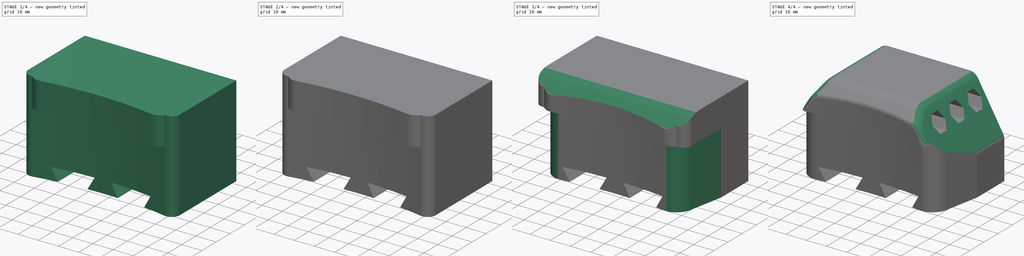
[diagram: build sequence overview — one tinted view per stage of 4, left to right]
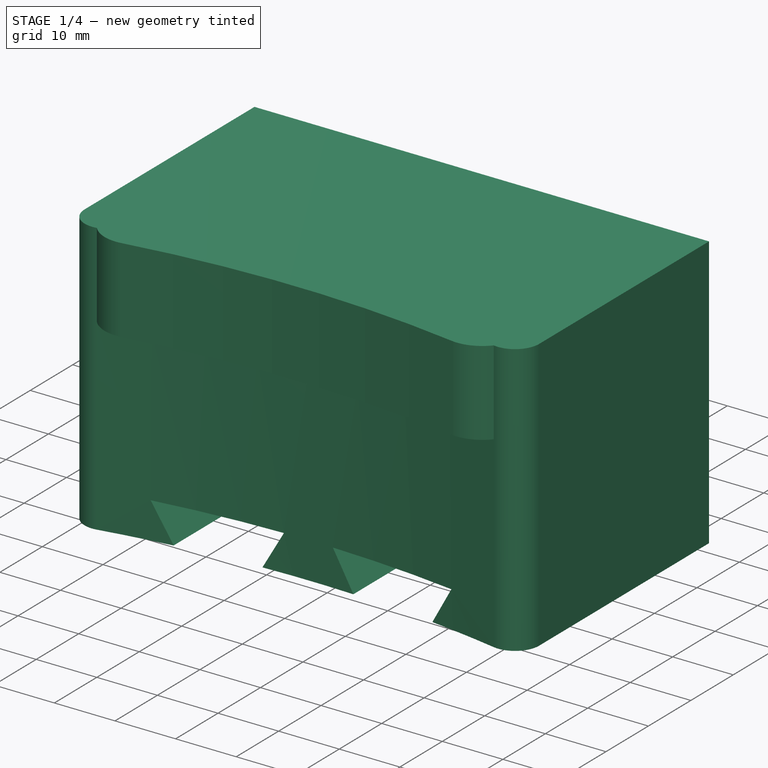
[diagram: stage 1 of 4 — iso view after this stage's code; geometry added in this stage tinted green]
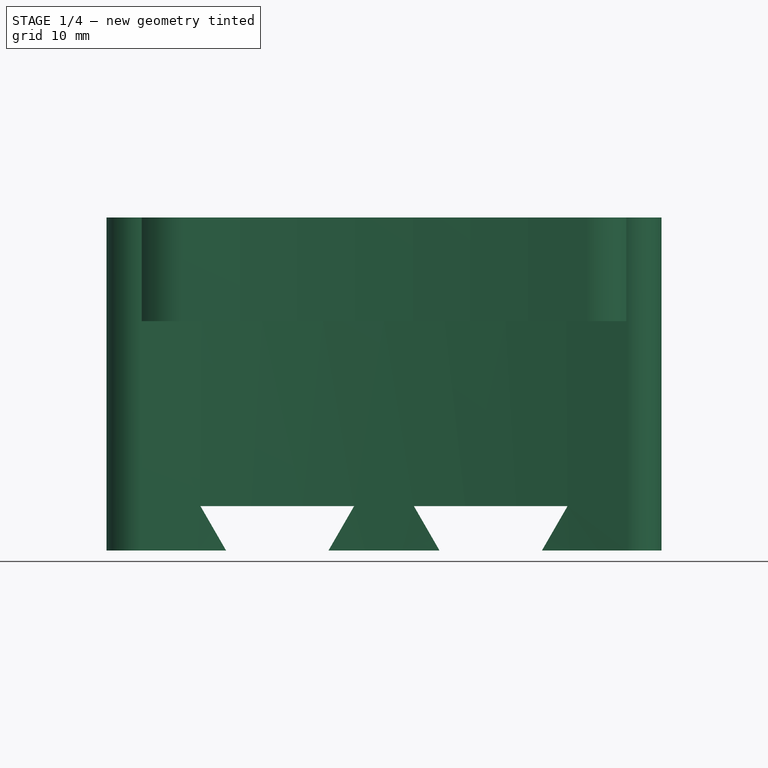
[diagram: stage 1 of 4 — front view after this stage's code; geometry added in this stage tinted green]
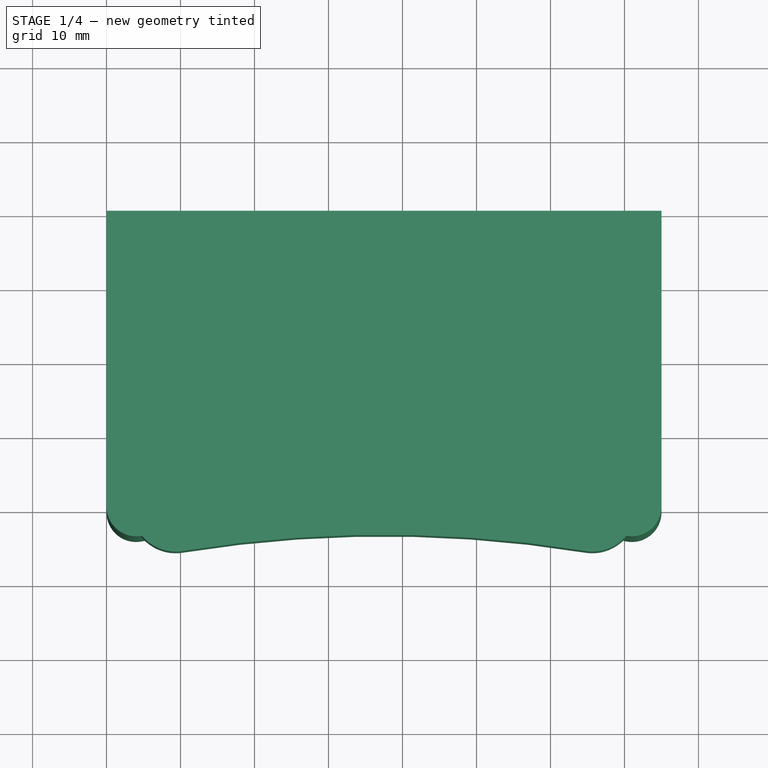
[diagram: stage 1 of 4 — top view after this stage's code; geometry added in this stage tinted green]
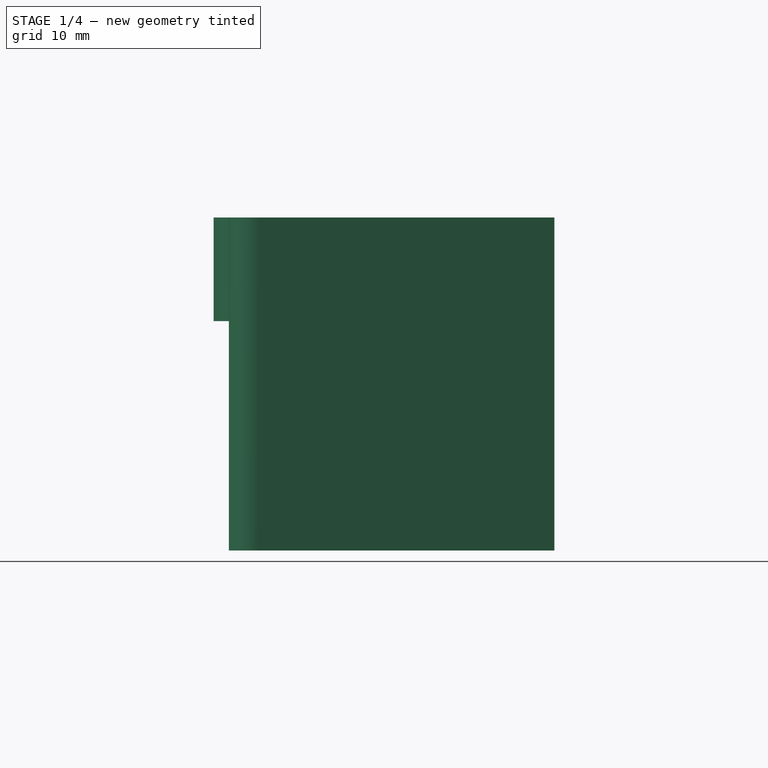
[diagram: stage 1 of 4 — right view after this stage's code; geometry added in this stage tinted green]
FCSTD DOCUMENT  (FreeCAD 0.19R14555 (Git shallow))
Label: toe_clip
License: All rights reserved
LicenseURL: http://en.wikipedia.org/wiki/All_rights_reserved
objects: Sketcher::SketchObject×10, PartDesign::Pocket×6, PartDesign::Fillet×4, PartDesign::Pad×3, PartDesign::Hole×1, PartDesign::Body×1
note: 39 computed .brp shape members not serialized (recipe doc carries the construction recipe); baked Part::Feature solids carry a one-line shape summary decoded from their .brp

FEATURE [Sketcher::SketchObject] Sketch
  FullyConstrained = true
  MapMode = 5
  Support = -> [XY_Plane]
  sketch-geometry (6):
    g0: LineSegment StartX=0 StartY=0 StartZ=0 EndX=75 EndY=0 EndZ=0
    g1: LineSegment StartX=75 StartY=0 StartZ=0 EndX=75 EndY=-40 EndZ=0
    g2: LineSegment StartX=0 StartY=-40 StartZ=0 EndX=0 EndY=0 EndZ=0
    g3: ArcOfCircle CenterX=37.5 CenterY=-213.781 CenterZ=0 NormalX=0 NormalY=0 NormalZ=1 AngleXU=0 Radius=172.981 StartAngle=1.38036 EndAngle=1.76123
    g4: ArcOfCircle CenterX=4 CenterY=-40 CenterZ=0 NormalX=0 NormalY=0 NormalZ=1 AngleXU=0 Radius=4 StartAngle=3.14159 EndAngle=4.90282
    g5: ArcOfCircle CenterX=71 CenterY=-40 CenterZ=0 NormalX=0 NormalY=0 NormalZ=1 AngleXU=0 Radius=4 StartAngle=4.52195 EndAngle=6.28319
  constraints (16):
    c: Coincident(g0,g1)
    c: Coincident(g2,g0)
    c: Horizontal(g0)
    c: Vertical(g1)
    c: Vertical(g2)
    c: Coincident(g0,g-1)
    c: DistanceX(g0,g0) = 75
    c: Radius(g4) = 4
    c: Equal(g4,g5)
    c: Tangent(g4,g2) = 1.5708
    c: Tangent(g4,g3) = 1.5708
    c: Tangent(g5,g3) = 1.5708
    c: Tangent(g5,g1) = 1.5708
    c: DistanceX(g3) = 37.5
    c: DistanceY(g3) = -213.781
    c: DistanceY(g1,g1) = 40
FEATURE [PartDesign::Pad] Pad
  Direction = (1,1,1)
  Length = 45
  Length2 = 100
  Profile = -> Sketch
  Type = 0
FEATURE [Sketcher::SketchObject] Sketch001
  ExternalGeometry = -> [Pad]
  FullyConstrained = true
  MapMode = 5
  Placement = pos=(0,0,0) rot=(0,0.707107,0.707107;3.14159rad)
  Support = -> [Pad]
  sketch-geometry (24):
    g0: LineSegment StartX=-75 StartY=0 StartZ=0 EndX=-57.6906 EndY=0 EndZ=0
    g1: LineSegment StartX=-57.6906 StartY=0 StartZ=0 EndX=-60.5774 EndY=5 EndZ=0
    g2: LineSegment StartX=-60.5774 StartY=5 StartZ=0 EndX=-43.2679 EndY=5 EndZ=0
    g3: LineSegment StartX=-43.2679 StartY=5 StartZ=0 EndX=-46.1547 EndY=0 EndZ=0
    g4: LineSegment StartX=-46.1547 StartY=0 StartZ=0 EndX=-28.8453 EndY=0 EndZ=0
    g5: LineSegment StartX=-28.8453 StartY=0 StartZ=0 EndX=-31.7321 EndY=5 EndZ=0
    g6: LineSegment StartX=-31.7321 StartY=5 StartZ=0 EndX=-14.4226 EndY=5 EndZ=0
    g7: LineSegment StartX=-14.4226 StartY=5 StartZ=0 EndX=-17.3094 EndY=0 EndZ=0
    g8: LineSegment StartX=-17.3094 StartY=0 StartZ=0 EndX=0 EndY=0 EndZ=0
    g9: LineSegment StartX=-28.8453 StartY=5 StartZ=0 EndX=-28.8453 EndY=0 EndZ=0
    g10: LineSegment StartX=-75 StartY=0 StartZ=0 EndX=-58.8453 EndY=0 EndZ=0
    g11: LineSegment StartX=-58.8453 StartY=0 StartZ=0 EndX=-62.3094 EndY=6 EndZ=0
    g12: LineSegment StartX=-62.3094 StartY=6 StartZ=0 EndX=-41.5359 EndY=6 EndZ=0
    g13: LineSegment StartX=-41.5359 StartY=6 StartZ=0 EndX=-45 EndY=0 EndZ=0
    g14: LineSegment StartX=-45 StartY=0 StartZ=0 EndX=-30 EndY=0 EndZ=0
    g15: LineSegment StartX=-30 StartY=0 StartZ=0 EndX=-33.4641 EndY=6 EndZ=0
    g16: LineSegment StartX=-33.4641 StartY=6 StartZ=0 EndX=-12.6906 EndY=6 EndZ=0
    g17: LineSegment StartX=-12.6906 StartY=6 StartZ=0 EndX=-16.1547 EndY=0 EndZ=0
    g18: LineSegment StartX=-16.1547 StartY=0 StartZ=0 EndX=0 EndY=0 EndZ=0
    g19: LineSegment StartX=-60.5774 StartY=5 StartZ=0 EndX=-60.5774 EndY=6 EndZ=0
    g20: LineSegment StartX=-60.5774 StartY=5 StartZ=0 EndX=-61.4434 EndY=4.5 EndZ=0
    g21: LineSegment StartX=-43.2679 StartY=5 StartZ=0 EndX=-42.4019 EndY=4.5 EndZ=0
    g22: LineSegment StartX=-30 StartY=0 StartZ=0 EndX=-16.1547 EndY=0 EndZ=0
    g23: LineSegment StartX=-58.8453 StartY=0 StartZ=0 EndX=-45 EndY=0 EndZ=0
  constraints (68):
    c: Coincident(g0,g-3)
    c: PointOnObject(g0,g-1)
    c: Coincident(g0,g1)
    c: Coincident(g1,g2)
    c: Horizontal(g2)
    c: Coincident(g2,g3)
    c: Coincident(g3,g4)
    c: PointOnObject(g4,g-1)
    c: Horizontal(g4)
    c: Coincident(g4,g5)
    c: Coincident(g5,g6)
    c: Horizontal(g6)
    c: Coincident(g6,g7)
    c: Coincident(g7,g8)
    c: Coincident(g8,g-1)
    c: Horizontal(g8)
    c: Equal(g0,g2)
    c: Equal(g2,g4)
    c: Equal(g4,g6)
    c: Equal(g6,g8)
    c: Parallel(g1,g5)
    c: Angle(g1) = 2.0944
    c: Equal(g1,g3)
    c: Equal(g3,g5)
    c: Equal(g5,g7)
    c: PointOnObject(g9,g6)
    c: Coincident(g9,g4)
    c: Vertical(g9)
    c: DistanceY(g9,g9) = 5
    c: Coincident(g0,g10)
    c: Coincident(g10,g11)
    c: Coincident(g11,g12)
    c: Horizontal(g12)
    c: Coincident(g12,g13)
    c: Coincident(g13,g14)
    c: Horizontal(g14)
    c: Coincident(g14,g15)
    c: Coincident(g15,g16)
    c: Horizontal(g16)
    c: Coincident(g16,g17)
    c: Coincident(g17,g18)
    c: Coincident(g18,g-1)
    c: Horizontal(g18)
    c: Horizontal(g10)
    c: Equal(g12,g16)
    c: Equal(g10,g18)
    c: Equal(g11,g13)
    c: Equal(g13,g15)
    c: Equal(g15,g17)
    c: PointOnObject(g13,g4)
    c: Parallel(g11,g1)
    c: Parallel(g1,g15)
    c: Coincident(g19,g1)
    c: PointOnObject(g19,g12)
    c: Vertical(g19)
    c: DistanceY(g19,g19) = 1
    c: PointOnObject(g20,g11)
    c: Perpendicular(g1,g20)
    c: Distance(g20) = 1
    c: Coincident(g21,g2)
    c: PointOnObject(g21,g13)
    c: Perpendicular(g13,g21)
    c: Distance(g21) = 1
    c: Coincident(g20,g1)
    c: Coincident(g22,g15)
    c: Coincident(g22,g17)
    c: Coincident(g23,g11)
    c: Coincident(g23,g13)
FEATURE [PartDesign::Pocket] Pocket
  BaseFeature = -> Pad
  Length = 5
  Length2 = 100
  Profile = -> Sketch001
  Type = 1
FEATURE [Sketcher::SketchObject] Sketch002
  ExternalGeometry = -> [Pocket]
  FullyConstrained = true
  MapMode = 5
  Placement = pos=(0,0,0) rot=(0,0.707107,0.707107;3.14159rad)
  Support = -> [Pocket]
  sketch-geometry (24):
    g0: LineSegment StartX=-57.6906 StartY=0 StartZ=0 EndX=-60.5774 EndY=5 EndZ=0
    g1: LineSegment StartX=-60.5774 StartY=5 StartZ=0 EndX=-43.2679 EndY=5 EndZ=0
    g2: LineSegment StartX=-43.2679 StartY=5 StartZ=0 EndX=-46.1547 EndY=4.7278e-12 EndZ=0
    g3: LineSegment StartX=-28.8453 StartY=-1.3e-15 StartZ=0 EndX=-31.7321 EndY=5 EndZ=0
    g4: LineSegment StartX=-31.7321 StartY=5 StartZ=0 EndX=-14.4226 EndY=5 EndZ=0
    g5: LineSegment StartX=-14.4226 StartY=5 StartZ=0 EndX=-17.3094 EndY=4.726e-12 EndZ=0
    g6: LineSegment StartX=-60.5774 StartY=5 StartZ=0 EndX=-60.5774 EndY=6 EndZ=0
    g7: LineSegment StartX=-60.5774 StartY=5 StartZ=0 EndX=-61.4434 EndY=4.5 EndZ=0
    g8: LineSegment StartX=-43.2679 StartY=5 StartZ=0 EndX=-42.4019 EndY=4.5 EndZ=0
    g9: LineSegment StartX=-31.7321 StartY=5 StartZ=0 EndX=-31.7321 EndY=6 EndZ=0
    g10: LineSegment StartX=-31.7321 StartY=5 StartZ=0 EndX=-32.5981 EndY=4.5 EndZ=0
    g11: LineSegment StartX=-14.4226 StartY=5 StartZ=0 EndX=-13.5566 EndY=4.5 EndZ=0
    g12: LineSegment StartX=-60.5774 StartY=5 StartZ=0 EndX=-43.2679 EndY=5 EndZ=0
    g13: LineSegment StartX=-43.2679 StartY=5 StartZ=0 EndX=-51.9226 EndY=19.9904 EndZ=0
    g14: LineSegment StartX=-51.9226 StartY=19.9904 StartZ=0 EndX=-60.5774 EndY=5 EndZ=0
    g15: Circle CenterX=-51.9226 CenterY=9.99679 CenterZ=0 NormalX=0 NormalY=0 NormalZ=1 AngleXU=0 Radius=9.99359
    g16: LineSegment StartX=-31.7321 StartY=5 StartZ=0 EndX=-14.4226 EndY=5 EndZ=0
    g17: LineSegment StartX=-14.4226 StartY=5 StartZ=0 EndX=-23.0774 EndY=19.9904 EndZ=0
    g18: LineSegment StartX=-23.0774 StartY=19.9904 StartZ=0 EndX=-31.7321 EndY=5 EndZ=0
    g19: Circle CenterX=-23.0774 CenterY=9.99679 CenterZ=0 NormalX=0 NormalY=0 NormalZ=1 AngleXU=0 Radius=9.99359
    g20: Circle CenterX=-51.9226 CenterY=19.9904 CenterZ=0 NormalX=0 NormalY=0 NormalZ=1 AngleXU=0 Radius=6.75
    g21: Circle CenterX=-51.9226 CenterY=19.9904 CenterZ=0 NormalX=0 NormalY=0 NormalZ=1 AngleXU=0 Radius=3
    g22: Circle CenterX=-23.0774 CenterY=19.9904 CenterZ=0 NormalX=0 NormalY=0 NormalZ=1 AngleXU=0 Radius=6.75
    g23: Circle CenterX=-23.0774 CenterY=19.9904 CenterZ=0 NormalX=0 NormalY=0 NormalZ=1 AngleXU=0 Radius=3
  constraints (66):
    c: Coincident(g0,g1)
    c: Horizontal(g1)
    c: Coincident(g1,g2)
    c: Coincident(g3,g4)
    c: Horizontal(g4)
    c: Coincident(g4,g5)
    c: Parallel(g-3,g0)
    c: Parallel(g0,g3)
    c: Parallel(g2,g-5)
    c: Parallel(g-5,g5)
    c: Coincident(g6,g0)
    c: PointOnObject(g6,g-4)
    c: Vertical(g6)
    c: Coincident(g7,g0)
    c: PointOnObject(g7,g-3)
    c: Coincident(g8,g1)
    c: PointOnObject(g8,g-5)
    c: Coincident(g9,g3)
    c: PointOnObject(g9,g-7)
    c: Coincident(g10,g3)
    c: PointOnObject(g10,g-6)
    c: Coincident(g11,g4)
    c: PointOnObject(g11,g-8)
    c: Equal(g7,g6)
    c: Equal(g6,g8)
    c: Equal(g8,g10)
    c: Equal(g10,g9)
    c: Equal(g9,g11)
    c: Perpendicular(g-3,g7)
    c: Perpendicular(g-5,g8)
    c: Perpendicular(g-6,g10)
    c: Perpendicular(g5,g11)
    c: Distance(g7) = 1
    c: PointOnObject(g0,g-1)
    c: Equal(g0,g2)
    c: Equal(g2,g3)
    c: Equal(g3,g5)
    c: Vertical(g9)
    c: Coincident(g12,g13)
    c: Coincident(g13,g14)
    c: Coincident(g14,g12)
    c: Equal(g12,g13)
    c: Equal(g12,g14)
    c: PointOnObject(g12,g15)
    c: PointOnObject(g13,g15)
    c: PointOnObject(g14,g15)
    c: Coincident(g14,g0)
    c: Coincident(g12,g1)
    c: Coincident(g16,g17)
    c: Coincident(g17,g18)
    c: Coincident(g18,g16)
    c: Equal(g16,g17)
    c: Equal(g16,g18)
    c: PointOnObject(g16,g19)
    c: PointOnObject(g17,g19)
    c: PointOnObject(g18,g19)
    c: Coincident(g18,g3)
    c: Coincident(g16,g4)
    c: Coincident(g20,g13)
    c: Coincident(g21,g20)
    c: Coincident(g22,g17)
    c: Coincident(g23,g22)
    c: Diameter(g20) = 13.5
    c: Equal(g20,g22)
    c: Diameter(g21) = 6
    c: Equal(g21,g23)
FEATURE [PartDesign::Pocket] Pocket001
  BaseFeature = -> Pocket
  Length = 10
  Length2 = 100
  Profile = -> Sketch002
  Type = 0
FEATURE [Sketcher::SketchObject] Sketch003
  ExternalGeometry = -> [Pocket001]
  FullyConstrained = true
  MapMode = 5
  Placement = pos=(0,0,45) rot=(0,0,1;0rad)
  Support = -> [Pocket001]
  sketch-geometry (5):
    g0: ArcOfCircle CenterX=37.5 CenterY=-213.781 CenterZ=0 NormalX=0 NormalY=0 NormalZ=1 AngleXU=0 Radius=172.981 StartAngle=1.38036 EndAngle=1.76123
    g1: ArcOfCircle CenterX=37.5 CenterY=-213.781 CenterZ=0 NormalX=0 NormalY=0 NormalZ=1 AngleXU=0 Radius=169.981 StartAngle=1.41014 EndAngle=1.73145
    g2: LineSegment StartX=37.5 StartY=-43.8005 StartZ=0 EndX=37.5 EndY=-40.8005 EndZ=0
    g3: ArcOfCircle CenterX=9.34976 CenterY=-40.0666 CenterZ=0 NormalX=0 NormalY=0 NormalZ=1 AngleXU=0 Radius=6 StartAngle=3.84067 EndAngle=4.87304
    g4: ArcOfCircle CenterX=65.6502 CenterY=-40.0666 CenterZ=0 NormalX=0 NormalY=0 NormalZ=1 AngleXU=0 Radius=6 StartAngle=4.55174 EndAngle=5.58411
  constraints (16):
    c: PointOnObject(g-3,g0)
    c: Coincident(g0,g-3)
    c: Coincident(g1,g0)
    c: PointOnObject(g2,g1)
    c: PointOnObject(g2,g0)
    c: Perpendicular(g1,g2)
    c: Distance(g2) = 3
    c: Vertical(g2)
    c: PointOnObject(g-3,g3)
    c: Diameter(g3) = 12
    c: PointOnObject(g-3,g4)
    c: Equal(g3,g4)
    c: Coincident(g0,g3)
    c: Tangent(g1,g3) = 1.5708
    c: Coincident(g4,g0)
    c: Tangent(g4,g1) = 1.5708
FEATURE [PartDesign::Pad] Pad001
  BaseFeature = -> Pocket001
  Direction = (1,1,1)
  Length = 10
  Length2 = 100
  Offset = -31
  Profile = -> Sketch003
  Reversed = true
  Type = 3
  UpToFace = -> Pocket001 [Face6]
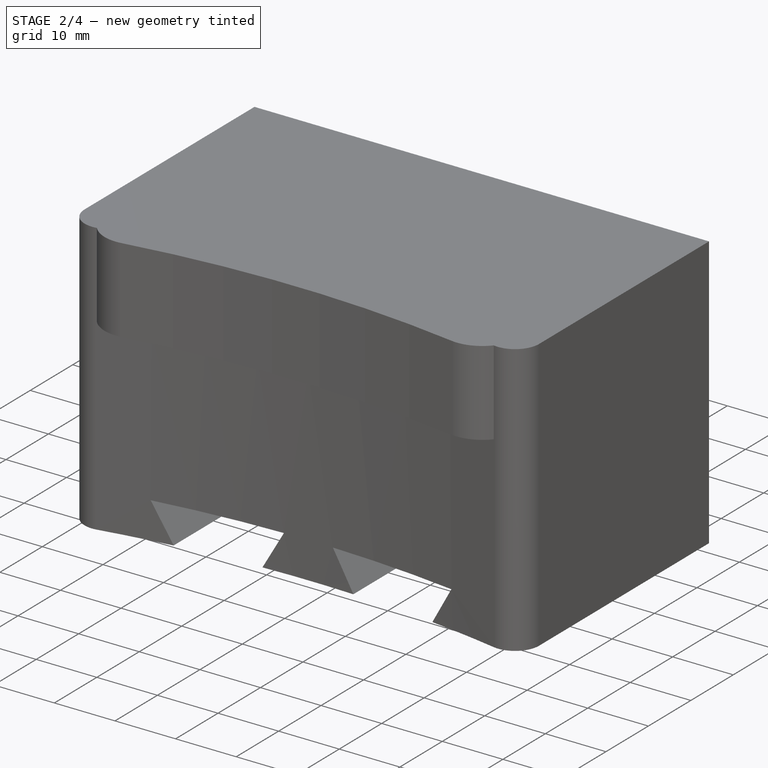
[diagram: stage 2 of 4 — iso view after this stage's code; geometry added in this stage tinted green]
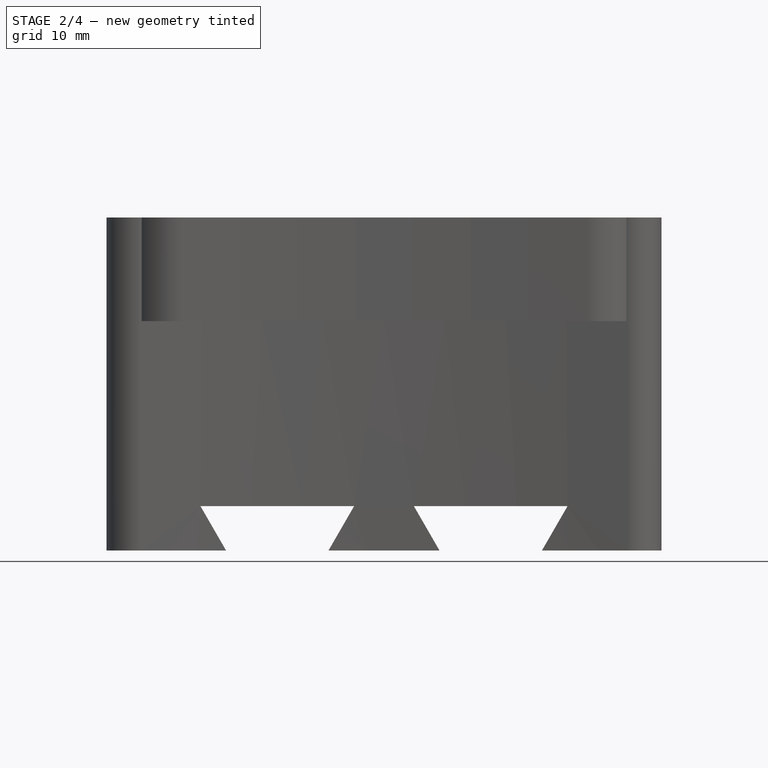
[diagram: stage 2 of 4 — front view after this stage's code; geometry added in this stage tinted green]
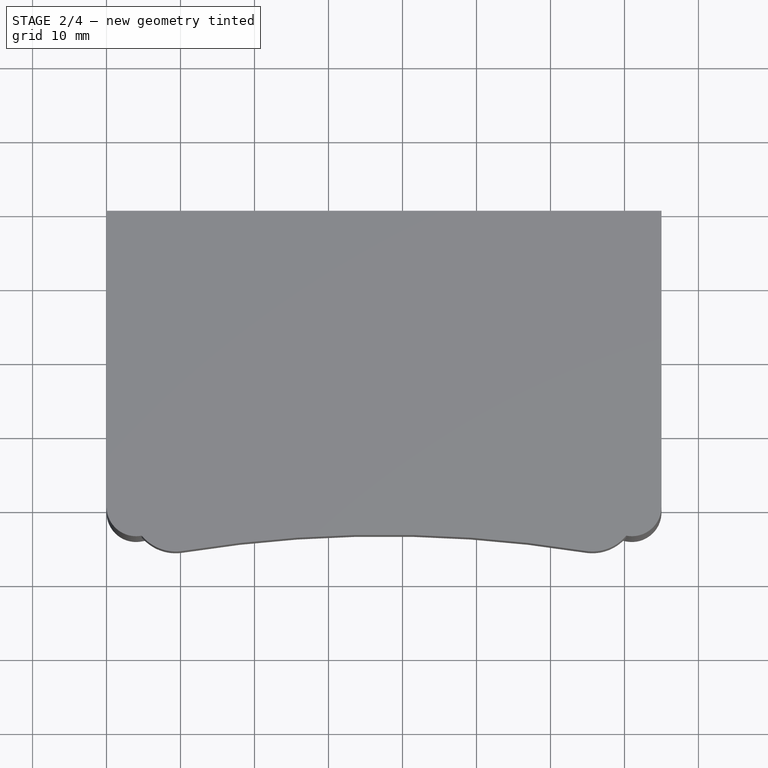
[diagram: stage 2 of 4 — top view after this stage's code; geometry added in this stage tinted green]
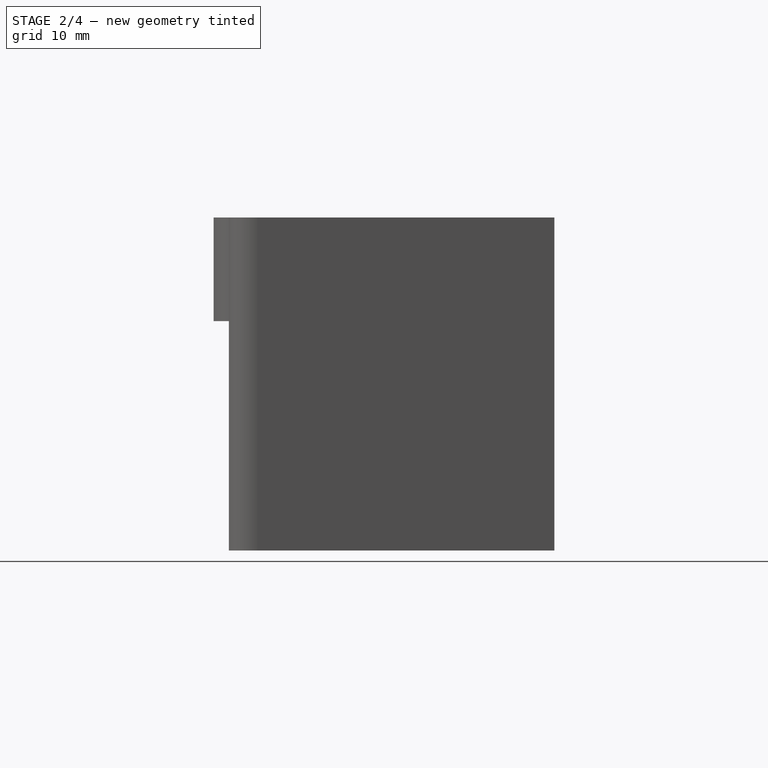
[diagram: stage 2 of 4 — right view after this stage's code; geometry added in this stage tinted green]
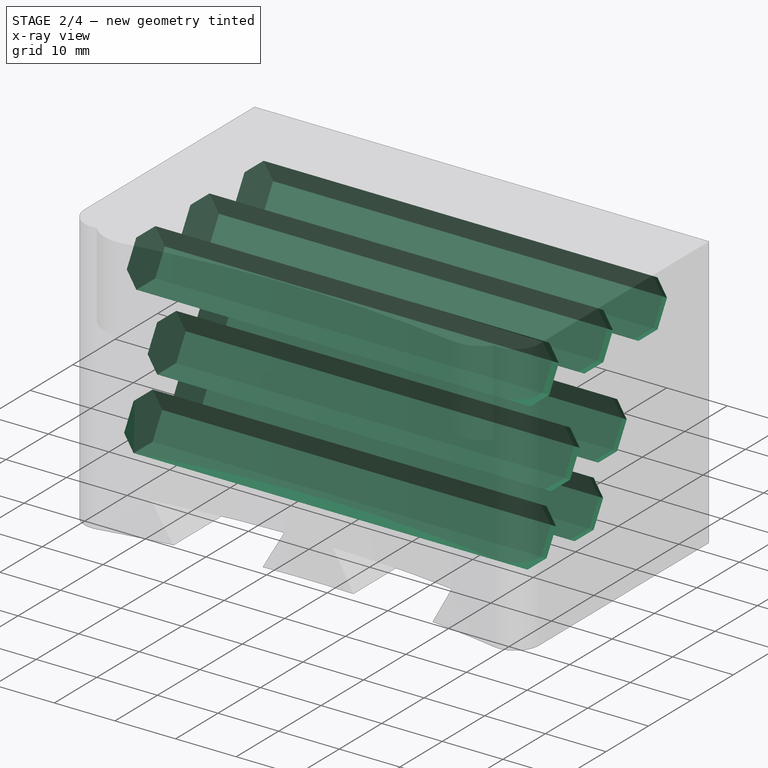
[diagram: stage 2 of 4 — x-ray composite at the iso view; earlier geometry ghosted, this stage's added geometry solid]
FEATURE [Sketcher::SketchObject] Sketch004
  ExternalGeometry = -> [Pad001]
  FullyConstrained = true
  MapMode = 5
  Placement = pos=(0,0,0) rot=(0,0.707107,0.707107;3.14159rad)
  Support = -> [Pad001]
  sketch-geometry (3):
    g0: LineSegment StartX=-51.9226 StartY=19.9904 StartZ=0 EndX=-37.5 EndY=19.9904 EndZ=0
    g1: LineSegment StartX=-37.5 StartY=19.9904 StartZ=0 EndX=-23.0774 EndY=19.9904 EndZ=0
    g2: Circle CenterX=-37.5 CenterY=19.9904 CenterZ=0 NormalX=0 NormalY=0 NormalZ=1 AngleXU=0 Radius=2
  constraints (7):
    c: Coincident(g0,g-3)
    c: Coincident(g1,g0)
    c: Coincident(g1,g-4)
    c: Horizontal(g0)
    c: Equal(g0,g1)
    c: Coincident(g2,g0)
    c: Diameter(g2) = 4
FEATURE [PartDesign::Hole] Hole
  BaseFeature = -> Pad001
  Depth = 10
  DepthType = 0
  Diameter = 5.1
  DrillForDepth = false
  DrillPoint = 1
  DrillPointAngle = 118
  HoleCutCountersinkAngle = 90
  HoleCutCustomValues = false
  HoleCutDepth = 0
  HoleCutDiameter = 6.1
  HoleCutType = 0
  ModelActualThread = false
  Profile = -> Sketch004
  Tapered = false
  TaperedAngle = 90
  ThreadAngle = 60
  ThreadClass = 0
  ThreadCutOffInner = 0.137482
  ThreadCutOffOuter = 0.274963
  ThreadDirection = 0
  ThreadFit = 0
  ThreadPitch = 1.27
  ThreadSize = 9
  ThreadType = 3
  Threaded = true
FEATURE [Sketcher::SketchObject] Sketch005
  ExternalGeometry = -> [Hole]
  FullyConstrained = true
  MapMode = 5
  Placement = pos=(75,0,0) rot=(0.57735,0.57735,0.57735;2.0944rad)
  Support = -> [Hole]
  sketch-geometry (57):
    g0: LineSegment StartX=-30.5 StartY=40.2085 StartZ=0 EndX=-35 EndY=40.2085 EndZ=0
    g1: LineSegment StartX=-35 StartY=40.2085 StartZ=0 EndX=-37.25 EndY=36.3114 EndZ=0
    g2: LineSegment StartX=-37.25 StartY=36.3114 StartZ=0 EndX=-35 EndY=32.4143 EndZ=0
    g3: LineSegment StartX=-35 StartY=32.4143 StartZ=0 EndX=-30.5 EndY=32.4143 EndZ=0
    g4: LineSegment StartX=-30.5 StartY=32.4143 StartZ=0 EndX=-28.25 EndY=36.3114 EndZ=0
    g5: LineSegment StartX=-28.25 StartY=36.3114 StartZ=0 EndX=-30.5 EndY=40.2085 EndZ=0
    g6: Circle CenterX=-32.75 CenterY=36.3114 CenterZ=0 NormalX=0 NormalY=0 NormalZ=1 AngleXU=0 Radius=4.5
    g7: LineSegment StartX=-5 StartY=40.2085 StartZ=0 EndX=-9.5 EndY=40.2085 EndZ=0
    g8: LineSegment StartX=-9.5 StartY=40.2085 StartZ=0 EndX=-11.75 EndY=36.3114 EndZ=0
    g9: LineSegment StartX=-11.75 StartY=36.3114 StartZ=0 EndX=-9.5 EndY=32.4143 EndZ=0
    g10: LineSegment StartX=-9.5 StartY=32.4143 StartZ=0 EndX=-5 EndY=32.4143 EndZ=0
    g11: LineSegment StartX=-5 StartY=32.4143 StartZ=0 EndX=-2.75 EndY=36.3114 EndZ=0
    g12: LineSegment StartX=-2.75 StartY=36.3114 StartZ=0 EndX=-5 EndY=40.2085 EndZ=0
    g13: Circle CenterX=-7.25 CenterY=36.3114 CenterZ=0 NormalX=0 NormalY=0 NormalZ=1 AngleXU=0 Radius=4.5
    g14: LineSegment StartX=-23.3358 StartY=21.7913 StartZ=0 EndX=-25.5858 EndY=25.6884 EndZ=0
    g15: LineSegment StartX=-25.5858 StartY=25.6884 StartZ=0 EndX=-30.0858 EndY=25.6884 EndZ=0
    g16: LineSegment StartX=-30.0858 StartY=25.6884 StartZ=0 EndX=-32.3358 EndY=21.7913 EndZ=0
    g17: LineSegment StartX=-32.3358 StartY=21.7913 StartZ=0 EndX=-30.0858 EndY=17.8942 EndZ=0
    g18: LineSegment StartX=-30.0858 StartY=17.8942 StartZ=0 EndX=-25.5858 EndY=17.8942 EndZ=0
    g19: LineSegment StartX=-25.5858 StartY=17.8942 StartZ=0 EndX=-23.3358 EndY=21.7913 EndZ=0
    g20: Circle CenterX=-27.8358 CenterY=21.7913 CenterZ=0 NormalX=0 NormalY=0 NormalZ=1 AngleXU=0 Radius=4.5
    g21: LineSegment StartX=-12.2429 StartY=21.7913 StartZ=0 EndX=-14.4929 EndY=25.6884 EndZ=0
    g22: LineSegment StartX=-14.4929 StartY=25.6884 StartZ=0 EndX=-18.9929 EndY=25.6884 EndZ=0
    g23: LineSegment StartX=-18.9929 StartY=25.6884 StartZ=0 EndX=-21.2429 EndY=21.7913 EndZ=0
    g24: LineSegment StartX=-21.2429 StartY=21.7913 StartZ=0 EndX=-18.9929 EndY=17.8942 EndZ=0
    g25: LineSegment StartX=-18.9929 StartY=17.8942 StartZ=0 EndX=-14.4929 EndY=17.8942 EndZ=0
    g26: LineSegment StartX=-14.4929 StartY=17.8942 StartZ=0 EndX=-12.2429 EndY=21.7913 EndZ=0
    g27: Circle CenterX=-16.7429 CenterY=21.7913 CenterZ=0 NormalX=0 NormalY=0 NormalZ=1 AngleXU=0 Radius=4.5
    g28: LineSegment StartX=-28.8822 StartY=12.1846 StartZ=0 EndX=-31.1322 EndY=16.0817 EndZ=0
    g29: LineSegment StartX=-31.1322 StartY=16.0817 StartZ=0 EndX=-35.6322 EndY=16.0817 EndZ=0
    g30: LineSegment StartX=-35.6322 StartY=16.0817 StartZ=0 EndX=-37.8822 EndY=12.1846 EndZ=0
    g31: LineSegment StartX=-37.8822 StartY=12.1846 StartZ=0 EndX=-35.6322 EndY=8.28744 EndZ=0
    g32: LineSegment StartX=-35.6322 StartY=8.28744 StartZ=0 EndX=-31.1322 EndY=8.28744 EndZ=0
    g33: LineSegment StartX=-31.1322 StartY=8.28744 StartZ=0 EndX=-28.8822 EndY=12.1846 EndZ=0
    g34: Circle CenterX=-33.3822 CenterY=12.1846 CenterZ=0 NormalX=0 NormalY=0 NormalZ=1 AngleXU=0 Radius=4.5
    g35: LineSegment StartX=-17.7893 StartY=12.1846 StartZ=0 EndX=-20.0393 EndY=16.0817 EndZ=0
    g36: LineSegment StartX=-20.0393 StartY=16.0817 StartZ=0 EndX=-24.5393 EndY=16.0817 EndZ=0
    g37: LineSegment StartX=-24.5393 StartY=16.0817 StartZ=0 EndX=-26.7893 EndY=12.1846 EndZ=0
    g38: LineSegment StartX=-26.7893 StartY=12.1846 StartZ=0 EndX=-24.5393 EndY=8.28744 EndZ=0
    g39: LineSegment StartX=-24.5393 StartY=8.28744 StartZ=0 EndX=-20.0393 EndY=8.28744 EndZ=0
    g40: LineSegment StartX=-20.0393 StartY=8.28744 StartZ=0 EndX=-17.7893 EndY=12.1846 EndZ=0
    g41: Circle CenterX=-22.2893 CenterY=12.1846 CenterZ=0 NormalX=0 NormalY=0 NormalZ=1 AngleXU=0 Radius=4.5
    g42: LineSegment StartX=-15.5 StartY=36.3114 StartZ=0 EndX=-17.75 EndY=40.2085 EndZ=0
    g43: LineSegment StartX=-17.75 StartY=40.2085 StartZ=0 EndX=-22.25 EndY=40.2085 EndZ=0
    g44: LineSegment StartX=-22.25 StartY=40.2085 StartZ=0 EndX=-24.5 EndY=36.3114 EndZ=0
    g45: LineSegment StartX=-24.5 StartY=36.3114 StartZ=0 EndX=-22.25 EndY=32.4143 EndZ=0
    g46: LineSegment StartX=-22.25 StartY=32.4143 StartZ=0 EndX=-17.75 EndY=32.4143 EndZ=0
    g47: LineSegment StartX=-17.75 StartY=32.4143 StartZ=0 EndX=-15.5 EndY=36.3114 EndZ=0
    g48: Circle CenterX=-20 CenterY=36.3114 CenterZ=0 NormalX=0 NormalY=0 NormalZ=1 AngleXU=0 Radius=4.5
    g49: LineSegment StartX=-33.3822 StartY=12.1846 StartZ=0 EndX=-27.8358 EndY=21.7913 EndZ=0
    g50: LineSegment StartX=-16.7429 StartY=21.7913 StartZ=0 EndX=-22.2893 EndY=12.1846 EndZ=0
    g51: LineSegment StartX=-27.8358 StartY=21.7913 StartZ=0 EndX=-16.7429 EndY=21.7913 EndZ=0
    g52: LineSegment StartX=-33.3822 StartY=12.1846 StartZ=0 EndX=-22.2893 EndY=12.1846 EndZ=0
    g53: LineSegment StartX=-32.75 StartY=36.3114 StartZ=0 EndX=-20 EndY=36.3114 EndZ=0
    g54: LineSegment StartX=-20 StartY=36.3114 StartZ=0 EndX=-7.25 EndY=36.3114 EndZ=0
    g55: LineSegment StartX=-37.25 StartY=36.3114 StartZ=0 EndX=-40 EndY=36.3114 EndZ=0
    g56: LineSegment StartX=-2.75 StartY=36.3114 StartZ=0 EndX=0 EndY=36.3114 EndZ=0
  constraints (137):
    c: Coincident(g0,g1)
    c: Coincident(g1,g2)
    c: Coincident(g2,g3)
    c: Coincident(g3,g4)
    c: Coincident(g4,g5)
    c: Coincident(g5,g0)
    c: Equal(g0, g1-g5) x5
    c: PointOnObject(g0,g6)
    c: PointOnObject(g1,g6)
    c: PointOnObject(g2,g6)
    c: PointOnObject(g3,g6)
    c: PointOnObject(g4,g6)
    c: PointOnObject(g5,g6)
    c: Coincident(g7,g8)
    c: Coincident(g8,g9)
    c: Coincident(g9,g10)
    c: Coincident(g10,g11)
    c: Coincident(g11,g12)
    c: Coincident(g12,g7)
    c: Equal(g7, g8-g12) x5
    c: PointOnObject(g7,g13)
    c: PointOnObject(g8,g13)
    c: PointOnObject(g9,g13)
    c: PointOnObject(g10,g13)
    c: PointOnObject(g11,g13)
    c: PointOnObject(g12,g13)
    c: Coincident(g14,g15)
    c: Coincident(g15,g16)
    c: Coincident(g16,g17)
    c: Coincident(g17,g18)
    c: Coincident(g18,g19)
    c: Coincident(g19,g14)
    c: Equal(g14, g15-g19) x5
    c: PointOnObject(g14,g20)
    c: PointOnObject(g15,g20)
    c: PointOnObject(g16,g20)
    c: PointOnObject(g17,g20)
    c: PointOnObject(g18,g20)
    c: PointOnObject(g19,g20)
    c: Coincident(g21,g22)
    c: Coincident(g22,g23)
    c: Coincident(g23,g24)
    c: Coincident(g24,g25)
    c: Coincident(g25,g26)
    c: Coincident(g26,g21)
    c: Equal(g21, g22-g26) x5
    c: PointOnObject(g21,g27)
    c: PointOnObject(g22,g27)
    c: PointOnObject(g23,g27)
    c: PointOnObject(g24,g27)
    c: PointOnObject(g25,g27)
    c: PointOnObject(g26,g27)
    c: Coincident(g28,g29)
    c: Coincident(g29,g30)
    c: Coincident(g30,g31)
    c: Coincident(g31,g32)
    c: Coincident(g32,g33)
    c: Coincident(g33,g28)
    c: Equal(g28, g29-g33) x5
    c: PointOnObject(g28,g34)
    c: PointOnObject(g29,g34)
    c: PointOnObject(g30,g34)
    c: PointOnObject(g31,g34)
    c: PointOnObject(g32,g34)
    c: PointOnObject(g33,g34)
    c: Coincident(g35,g36)
    c: Coincident(g36,g37)
    c: Coincident(g37,g38)
    c: Coincident(g38,g39)
    c: Coincident(g39,g40)
    c: Coincident(g40,g35)
    c: Equal(g35, g36-g40) x5
    c: PointOnObject(g35,g41)
    c: PointOnObject(g36,g41)
    c: PointOnObject(g37,g41)
    c: PointOnObject(g38,g41)
    c: PointOnObject(g39,g41)
    c: PointOnObject(g40,g41)
    c: Parallel(g0,g7)
    c: Parallel(g14,g21)
    c: Parallel(g21,g28)
    c: Parallel(g28,g35)
    c: Horizontal(g0)
    c: Equal(g2,g9)
    c: Equal(g9,g14)
    c: Equal(g14,g21)
    c: Equal(g21,g35)
    c: Equal(g35,g28)
    c: Coincident(g42,g43)
    c: Coincident(g43,g44)
    c: Coincident(g44,g45)
    c: Coincident(g45,g46)
    c: Coincident(g46,g47)
    c: Coincident(g47,g42)
    c: Equal(g42, g43-g47) x5
    c: PointOnObject(g42,g48)
    c: PointOnObject(g43,g48)
    c: PointOnObject(g44,g48)
    c: PointOnObject(g45,g48)
    c: PointOnObject(g46,g48)
    c: PointOnObject(g47,g48)
    c: Coincident(g49,g20)
    c: Coincident(g50,g41)
    c: Coincident(g49,g34)
    c: Equal(g46,g22)
    c: Horizontal(g43)
    c: Coincident(g51,g20)
    c: Coincident(g51,g27)
    c: Coincident(g52,g41)
    c: Horizontal(g52)
    c: Coincident(g52,g34)
    c: Horizontal(g29)
    c: Horizontal(g51)
    c: Coincident(g53,g6)
    c: Coincident(g53,g48)
    c: Horizontal(g53)
    c: DistanceY(g6) = 36.3114
    c: Equal(g49,g52)
    c: Parallel(g49,g30)
    c: Parallel(g49,g50)
    c: Coincident(g50,g27)
    c: DistanceX(g34) = -33.3822
    c: DistanceY(g34) = 12.1846
    c: DistanceX(g27) = -16.7429
    c: Coincident(g54,g48)
    c: Coincident(g54,g13)
    c: Horizontal(g54)
    c: Equal(g53,g54)
    c: Coincident(g55,g1)
    c: PointOnObject(g55,g-3)
    c: Horizontal(g55)
    c: Coincident(g56,g11)
    c: PointOnObject(g56,g-2)
    c: Horizontal(g56)
    c: Equal(g55,g56)
    c: DistanceX(g0,g0) = 4.5
    c: DistanceX(g55,g55) = 2.75
FEATURE [PartDesign::Pocket] Pocket002
  BaseFeature = -> Hole
  Length = 0
  Length2 = 100
  Offset = -5
  Profile = -> Sketch005
  Type = 3
  UpToFace = -> Hole [Face16]
FEATURE [Sketcher::SketchObject] Sketch006
  ExternalGeometry = -> [Pocket002]
  FullyConstrained = true
  MapMode = 5
  Placement = pos=(75,0,0) rot=(0.57735,0.57735,0.57735;2.0944rad)
  Support = -> [Pocket002]
  sketch-geometry (49):
    g0: LineSegment StartX=-30.0858 StartY=25.6884 StartZ=0 EndX=-32.3358 EndY=21.7913 EndZ=0
    g1: LineSegment StartX=-32.3358 StartY=21.7913 StartZ=0 EndX=-30.0858 EndY=17.8942 EndZ=0
    g2: LineSegment StartX=-30.0858 StartY=17.8942 StartZ=0 EndX=-25.5858 EndY=17.8942 EndZ=0
    g3: LineSegment StartX=-25.5858 StartY=17.8942 StartZ=0 EndX=-23.3358 EndY=21.7913 EndZ=0
    g4: LineSegment StartX=-23.3358 StartY=21.7913 StartZ=0 EndX=-25.5858 EndY=25.6884 EndZ=0
    g5: LineSegment StartX=-25.5858 StartY=25.6884 StartZ=0 EndX=-30.0858 EndY=25.6884 EndZ=0
    g6: Circle CenterX=-27.8358 CenterY=21.7913 CenterZ=0 NormalX=0 NormalY=0 NormalZ=1 AngleXU=0 Radius=4.5
    g7: LineSegment StartX=-9.5 StartY=40.2085 StartZ=0 EndX=-11.75 EndY=36.3114 EndZ=0
    g8: LineSegment StartX=-11.75 StartY=36.3114 StartZ=0 EndX=-9.5 EndY=32.4143 EndZ=0
    g9: LineSegment StartX=-9.5 StartY=32.4143 StartZ=0 EndX=-5 EndY=32.4143 EndZ=0
    g10: LineSegment StartX=-5 StartY=32.4143 StartZ=0 EndX=-2.75 EndY=36.3114 EndZ=0
    g11: LineSegment StartX=-2.75 StartY=36.3114 StartZ=0 EndX=-5 EndY=40.2085 EndZ=0
    g12: LineSegment StartX=-5 StartY=40.2085 StartZ=0 EndX=-9.5 EndY=40.2085 EndZ=0
    g13: Circle CenterX=-7.25 CenterY=36.3114 CenterZ=0 NormalX=0 NormalY=0 NormalZ=1 AngleXU=0 Radius=4.5
    g14: LineSegment StartX=-35.6322 StartY=16.0817 StartZ=0 EndX=-37.8822 EndY=12.1846 EndZ=0
    g15: LineSegment StartX=-37.8822 StartY=12.1846 StartZ=0 EndX=-35.6322 EndY=8.28744 EndZ=0
    g16: LineSegment StartX=-35.6322 StartY=8.28744 StartZ=0 EndX=-31.1322 EndY=8.28744 EndZ=0
    g17: LineSegment StartX=-31.1322 StartY=8.28744 StartZ=0 EndX=-28.8822 EndY=12.1846 EndZ=0
    g18: LineSegment StartX=-28.8822 StartY=12.1846 StartZ=0 EndX=-31.1322 EndY=16.0817 EndZ=0
    g19: LineSegment StartX=-31.1322 StartY=16.0817 StartZ=0 EndX=-35.6322 EndY=16.0817 EndZ=0
    g20: Circle CenterX=-33.3822 CenterY=12.1846 CenterZ=0 NormalX=0 NormalY=0 NormalZ=1 AngleXU=0 Radius=4.5
    g21: LineSegment StartX=-22.25 StartY=40.2085 StartZ=0 EndX=-24.5 EndY=36.3114 EndZ=0
    g22: LineSegment StartX=-24.5 StartY=36.3114 StartZ=0 EndX=-22.25 EndY=32.4143 EndZ=0
    g23: LineSegment StartX=-22.25 StartY=32.4143 StartZ=0 EndX=-17.75 EndY=32.4143 EndZ=0
    g24: LineSegment StartX=-17.75 StartY=32.4143 StartZ=0 EndX=-15.5 EndY=36.3114 EndZ=0
    g25: LineSegment StartX=-15.5 StartY=36.3114 StartZ=0 EndX=-17.75 EndY=40.2085 EndZ=0
    g26: LineSegment StartX=-17.75 StartY=40.2085 StartZ=0 EndX=-22.25 EndY=40.2085 EndZ=0
    g27: Circle CenterX=-20 CenterY=36.3114 CenterZ=0 NormalX=0 NormalY=0 NormalZ=1 AngleXU=0 Radius=4.5
    g28: LineSegment StartX=-37.25 StartY=36.3114 StartZ=0 EndX=-35 EndY=32.4143 EndZ=0
    g29: LineSegment StartX=-35 StartY=32.4143 StartZ=0 EndX=-30.5 EndY=32.4143 EndZ=0
    g30: LineSegment StartX=-30.5 StartY=32.4143 StartZ=0 EndX=-28.25 EndY=36.3114 EndZ=0
    g31: LineSegment StartX=-28.25 StartY=36.3114 StartZ=0 EndX=-30.5 EndY=40.2085 EndZ=0
    g32: LineSegment StartX=-30.5 StartY=40.2085 StartZ=0 EndX=-35 EndY=40.2085 EndZ=0
    g33: LineSegment StartX=-35 StartY=40.2085 StartZ=0 EndX=-37.25 EndY=36.3114 EndZ=0
    g34: Circle CenterX=-32.75 CenterY=36.3114 CenterZ=0 NormalX=0 NormalY=0 NormalZ=1 AngleXU=0 Radius=4.5
    g35: LineSegment StartX=-24.5393 StartY=16.0817 StartZ=0 EndX=-26.7893 EndY=12.1846 EndZ=0
    g36: LineSegment StartX=-26.7893 StartY=12.1846 StartZ=0 EndX=-24.5393 EndY=8.28744 EndZ=0
    g37: LineSegment StartX=-24.5393 StartY=8.28744 StartZ=0 EndX=-20.0393 EndY=8.28744 EndZ=0
    g38: LineSegment StartX=-20.0393 StartY=8.28744 StartZ=0 EndX=-17.7893 EndY=12.1846 EndZ=0
    g39: LineSegment StartX=-17.7893 StartY=12.1846 StartZ=0 EndX=-20.0393 EndY=16.0817 EndZ=0
    g40: LineSegment StartX=-20.0393 StartY=16.0817 StartZ=0 EndX=-24.5393 EndY=16.0817 EndZ=0
    g41: Circle CenterX=-22.2893 CenterY=12.1846 CenterZ=0 NormalX=0 NormalY=0 NormalZ=1 AngleXU=0 Radius=4.5
    g42: LineSegment StartX=-18.9929 StartY=25.6884 StartZ=0 EndX=-21.2429 EndY=21.7913 EndZ=0
    g43: LineSegment StartX=-21.2429 StartY=21.7913 StartZ=0 EndX=-18.9929 EndY=17.8942 EndZ=0
    g44: LineSegment StartX=-18.9929 StartY=17.8942 StartZ=0 EndX=-14.4929 EndY=17.8942 EndZ=0
    g45: LineSegment StartX=-14.4929 StartY=17.8942 StartZ=0 EndX=-12.2429 EndY=21.7913 EndZ=0
    g46: LineSegment StartX=-12.2429 StartY=21.7913 StartZ=0 EndX=-14.4929 EndY=25.6884 EndZ=0
    g47: LineSegment StartX=-14.4929 StartY=25.6884 StartZ=0 EndX=-18.9929 EndY=25.6884 EndZ=0
    g48: Circle CenterX=-16.7429 CenterY=21.7913 CenterZ=0 NormalX=0 NormalY=0 NormalZ=1 AngleXU=0 Radius=4.5
  constraints (105):
    c: Coincident(g0,g1)
    c: Coincident(g1,g2)
    c: Coincident(g2,g3)
    c: Coincident(g3,g4)
    c: Coincident(g4,g5)
    c: Coincident(g5,g0)
    c: Equal(g0, g1-g5) x5
    c: PointOnObject(g0,g6)
    c: PointOnObject(g1,g6)
    c: PointOnObject(g2,g6)
    c: PointOnObject(g3,g6)
    c: PointOnObject(g4,g6)
    c: PointOnObject(g5,g6)
    c: Coincident(g5,g-6)
    c: Coincident(g7,g8)
    c: Coincident(g8,g9)
    c: Coincident(g9,g10)
    c: Coincident(g10,g11)
    c: Coincident(g11,g12)
    c: Coincident(g12,g7)
    c: Equal(g7, g8-g12) x5
    c: PointOnObject(g7,g13)
    c: PointOnObject(g8,g13)
    c: PointOnObject(g9,g13)
    c: PointOnObject(g10,g13)
    c: PointOnObject(g11,g13)
    c: PointOnObject(g12,g13)
    c: Coincident(g12,g-9)
    c: Coincident(g14,g15)
    c: Coincident(g15,g16)
    c: Coincident(g16,g17)
    c: Coincident(g17,g18)
    c: Coincident(g18,g19)
    c: Coincident(g19,g14)
    c: Equal(g14, g15-g19) x5
    c: PointOnObject(g14,g20)
    c: PointOnObject(g15,g20)
    c: PointOnObject(g16,g20)
    c: PointOnObject(g17,g20)
    c: PointOnObject(g18,g20)
    c: PointOnObject(g19,g20)
    c: Coincident(g19,g-15)
    c: Coincident(g21,g22)
    c: Coincident(g22,g23)
    c: Coincident(g23,g24)
    c: Coincident(g24,g25)
    c: Coincident(g25,g26)
    c: Coincident(g26,g21)
    c: Equal(g21, g22-g26) x5
    c: PointOnObject(g21,g27)
    c: PointOnObject(g22,g27)
    c: PointOnObject(g23,g27)
    c: PointOnObject(g24,g27)
    c: PointOnObject(g25,g27)
    c: PointOnObject(g26,g27)
    c: Coincident(g26,g-17)
    c: Coincident(g28,g29)
    c: Coincident(g29,g30)
    c: Coincident(g30,g31)
    c: Coincident(g31,g32)
    c: Coincident(g32,g33)
    c: Coincident(g33,g28)
    c: Equal(g28, g29-g33) x5
    c: PointOnObject(g28,g34)
    c: PointOnObject(g29,g34)
    c: PointOnObject(g30,g34)
    c: PointOnObject(g31,g34)
    c: PointOnObject(g32,g34)
    c: PointOnObject(g33,g34)
    c: Coincident(g33,g-19)
    c: Coincident(g2,g-8)
    c: Coincident(g9,g-11)
    c: Coincident(g16,g-16)
    c: Coincident(g-17,g25)
    c: Coincident(g32,g-19)
    c: Coincident(g35,g36)
    c: Coincident(g36,g37)
    c: Coincident(g37,g38)
    c: Coincident(g38,g39)
    c: Coincident(g39,g40)
    c: Coincident(g40,g35)
    c: Equal(g35, g36-g40) x5
    c: PointOnObject(g35,g41)
    c: PointOnObject(g36,g41)
    c: PointOnObject(g37,g41)
    c: PointOnObject(g38,g41)
    c: PointOnObject(g39,g41)
    c: PointOnObject(g40,g41)
    c: Coincident(g40,g-12)
    c: Coincident(g42,g43)
    c: Coincident(g43,g44)
    c: Coincident(g44,g45)
    c: Coincident(g45,g46)
    c: Coincident(g46,g47)
    c: Coincident(g47,g42)
    c: Equal(g42, g43-g47) x5
    c: PointOnObject(g42,g48)
    c: PointOnObject(g43,g48)
    c: PointOnObject(g44,g48)
    c: PointOnObject(g45,g48)
    c: PointOnObject(g46,g48)
    c: PointOnObject(g47,g48)
    c: Coincident(g47,g-4)
    c: Coincident(g46,g-3)
    c: Coincident(g37,g-14)
FEATURE [PartDesign::Pad] Pad002
  BaseFeature = -> Pocket002
  Direction = (1,1,1)
  Length = 5
  Length2 = 100
  Profile = -> Sketch006
  Reversed = true
  Type = 0
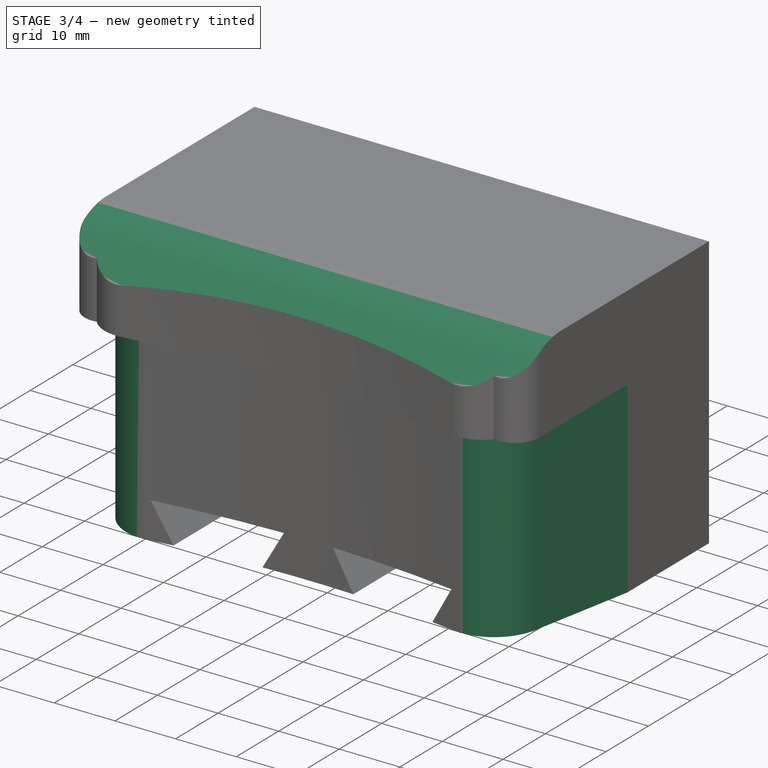
[diagram: stage 3 of 4 — iso view after this stage's code; geometry added in this stage tinted green]
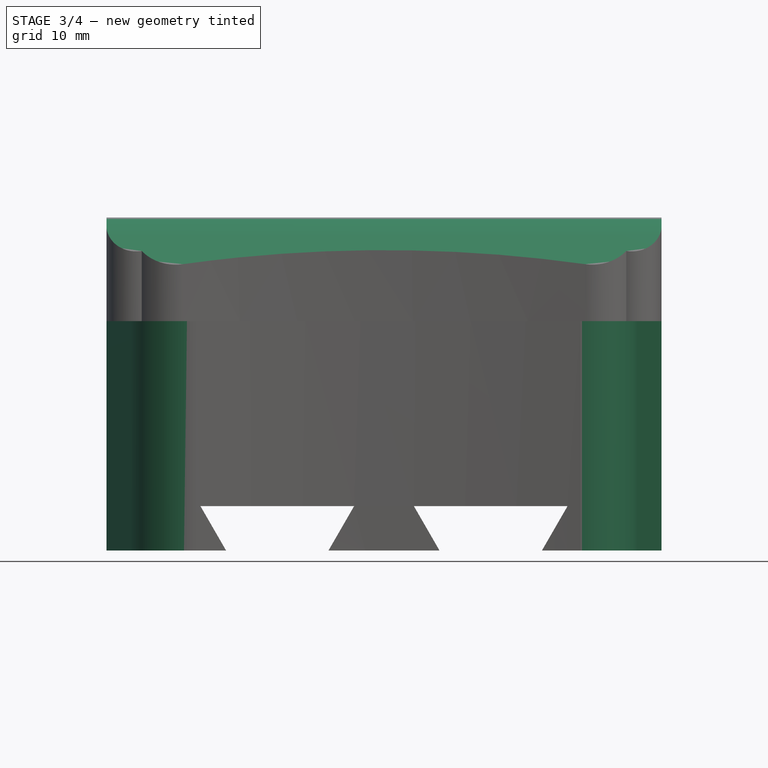
[diagram: stage 3 of 4 — front view after this stage's code; geometry added in this stage tinted green]
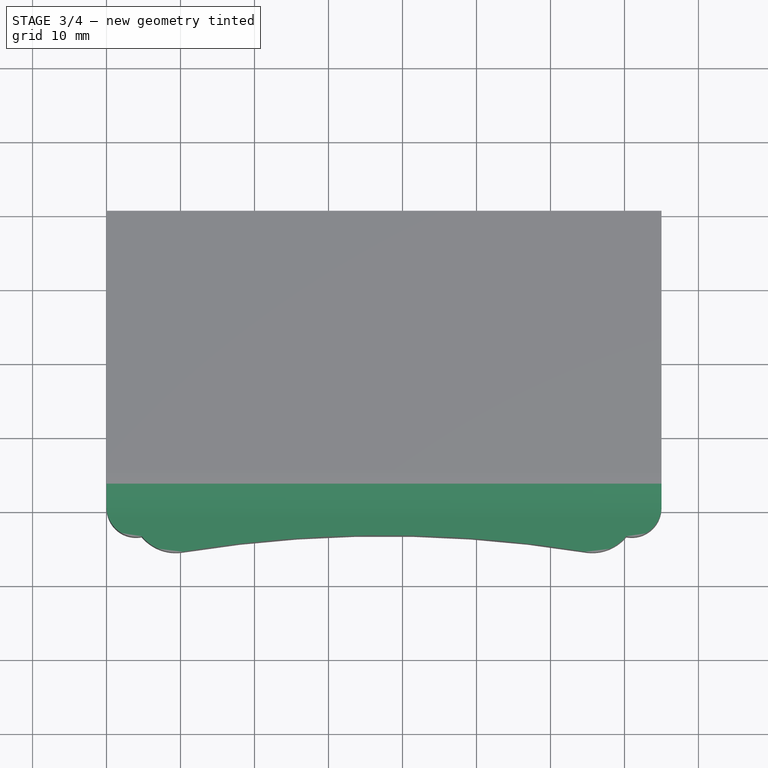
[diagram: stage 3 of 4 — top view after this stage's code; geometry added in this stage tinted green]
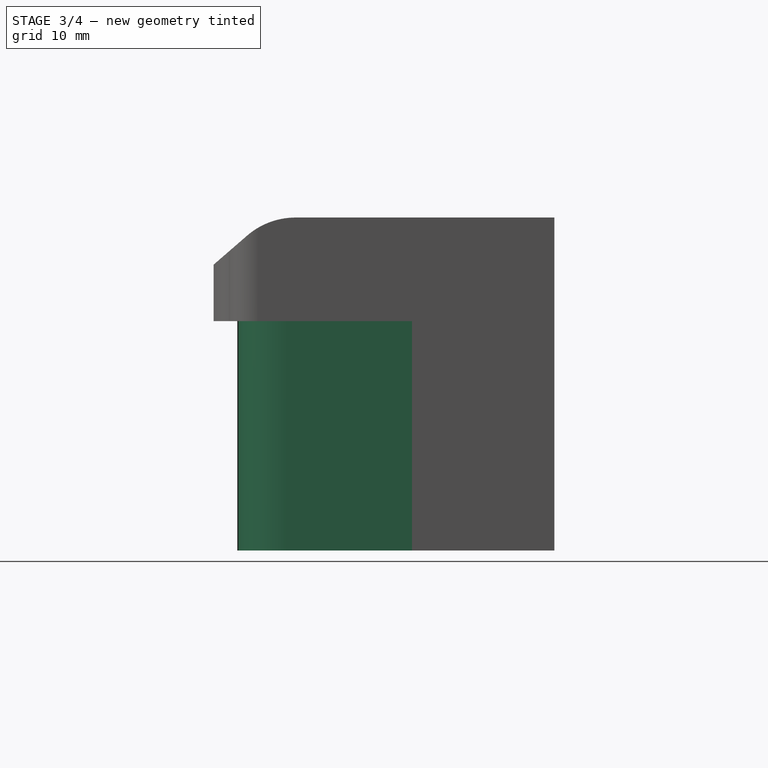
[diagram: stage 3 of 4 — right view after this stage's code; geometry added in this stage tinted green]
FEATURE [Sketcher::SketchObject] Sketch007
  FullyConstrained = true
  MapMode = 5
  Placement = pos=(75,0,0) rot=(0.57735,0.57735,0.57735;2.0944rad)
  Support = -> [Pad002]
  sketch-geometry (3):
    g0: LineSegment StartX=-35.4269 StartY=47.8425 StartZ=0 EndX=-49.2829 EndY=35.8413 EndZ=0
    g1: LineSegment StartX=-49.2829 StartY=35.8413 StartZ=0 EndX=-49.3573 EndY=46.9879 EndZ=0
    g2: LineSegment StartX=-49.3573 StartY=46.9879 StartZ=0 EndX=-35.4269 EndY=47.8425 EndZ=0
  constraints (9):
    c: Coincident(g1,g2)
    c: Coincident(g2,g0)
    c: Coincident(g0,g1)
    c: DistanceX(g1) = -49.3573
    c: DistanceY(g1) = 46.9879
    c: DistanceX(g0) = -35.4269
    c: DistanceY(g0) = 47.8425
    c: DistanceX(g0) = -49.2829
    c: DistanceY(g0) = 35.8413
FEATURE [PartDesign::Pocket] Pocket003
  BaseFeature = -> Pad002
  Length = 5
  Length2 = 100
  Profile = -> Sketch007
  Type = 1
FEATURE [PartDesign::Fillet] Fillet
  Base = -> Pocket003 [Edge99]
  BaseFeature = -> Pocket003
  Radius = 10
  SupportTransform = false
FEATURE [Sketcher::SketchObject] Sketch008
  ExternalGeometry = -> [Fillet]
  FullyConstrained = true
  MapMode = 5
  Placement = pos=(0,0,0) rot=(1,0,0;3.14159rad)
  Support = -> [Fillet]
  sketch-geometry (8):
    g0: LineSegment StartX=3.27634 StartY=36.246 StartZ=0 EndX=0 EndY=19.25 EndZ=0
    g1: LineSegment StartX=71.7237 StartY=36.246 StartZ=0 EndX=75 EndY=19.25 EndZ=0
    g2: ArcOfCircle CenterX=11.1317 CenterY=34.7317 CenterZ=0 NormalX=0 NormalY=0 NormalZ=1 AngleXU=0 Radius=8 StartAngle=1.45413 EndAngle=2.95116
    g3: ArcOfCircle CenterX=63.8683 CenterY=34.7317 CenterZ=0 NormalX=0 NormalY=0 NormalZ=1 AngleXU=0 Radius=8 StartAngle=0.190435 EndAngle=1.5708
    g4: LineSegment StartX=12.0629 StartY=42.6773 StartZ=0 EndX=-3.44486 EndY=48.4419 EndZ=0
    g5: LineSegment StartX=-3.44486 StartY=48.4419 StartZ=0 EndX=0 EndY=19.25 EndZ=0
    g6: LineSegment StartX=63.8683 StartY=42.7317 StartZ=0 EndX=79.5437 EndY=52.9149 EndZ=0
    g7: LineSegment StartX=75 StartY=19.25 StartZ=0 EndX=79.5437 EndY=52.9149 EndZ=0
  constraints (21):
    c: PointOnObject(g0,g-6)
    c: PointOnObject(g1,g-5)
    c: Perpendicular(g-4,g1)
    c: Perpendicular(g-3,g0)
    c: Tangent(g2,g-3)
    c: Tangent(g3,g-4)
    c: Radius(g2) = 8
    c: Equal(g2,g3)
    c: Coincident(g5,g4)
    c: Coincident(g5,g0)
    c: Coincident(g7,g1)
    c: Coincident(g7,g6)
    c: Coincident(g2,g4)
    c: Tangent(g2,g0) = -1.5708
    c: Coincident(g3,g6)
    c: Tangent(g1,g3) = 1.5708
    c: Block(g2)
    c: Block(g3)
    c: Block(g4)
    c: Block(g6)
    c: Block(g7)
FEATURE [PartDesign::Pocket] Pocket004
  BaseFeature = -> Fillet
  Length = 0
  Length2 = 100
  Profile = -> Sketch008
  Type = 3
  UpToFace = -> Fillet [Face13]
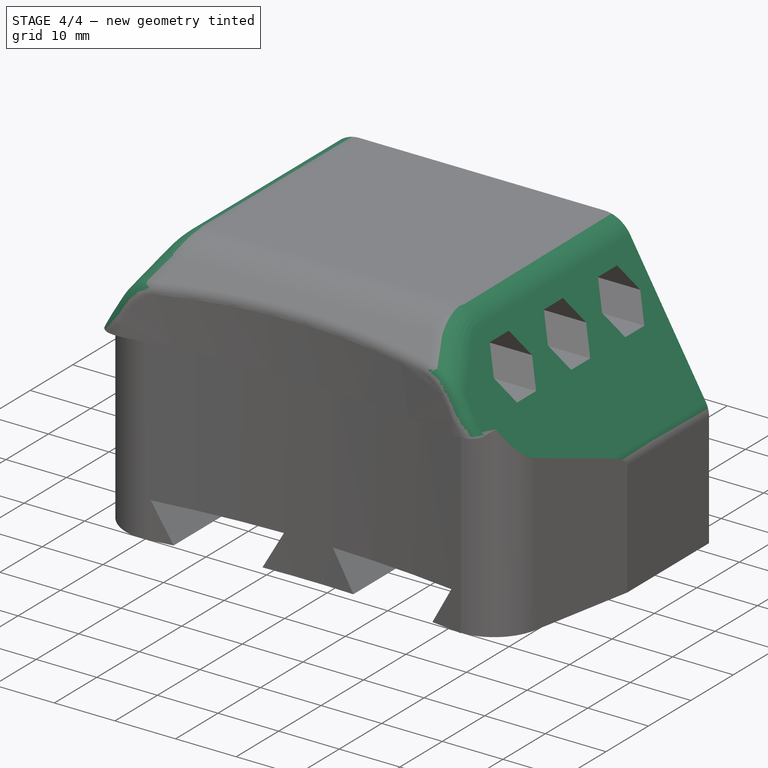
[diagram: stage 4 of 4 — iso view after this stage's code; geometry added in this stage tinted green]
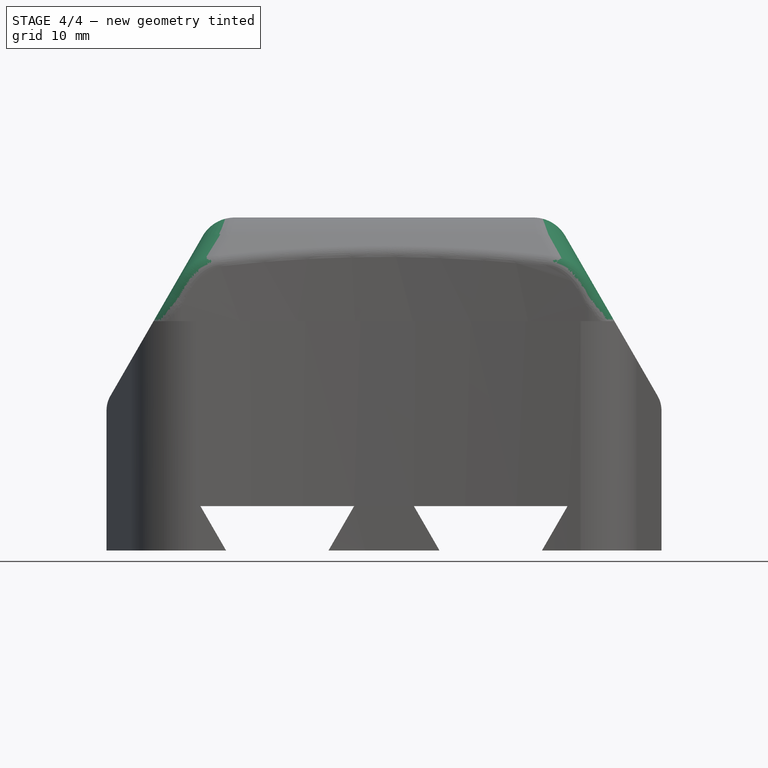
[diagram: stage 4 of 4 — front view after this stage's code; geometry added in this stage tinted green]
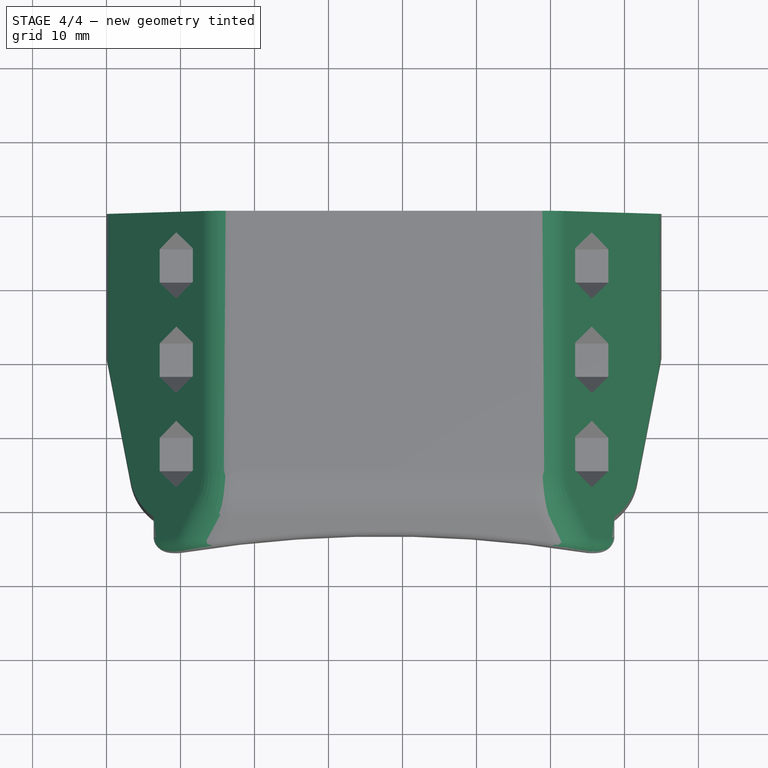
[diagram: stage 4 of 4 — top view after this stage's code; geometry added in this stage tinted green]
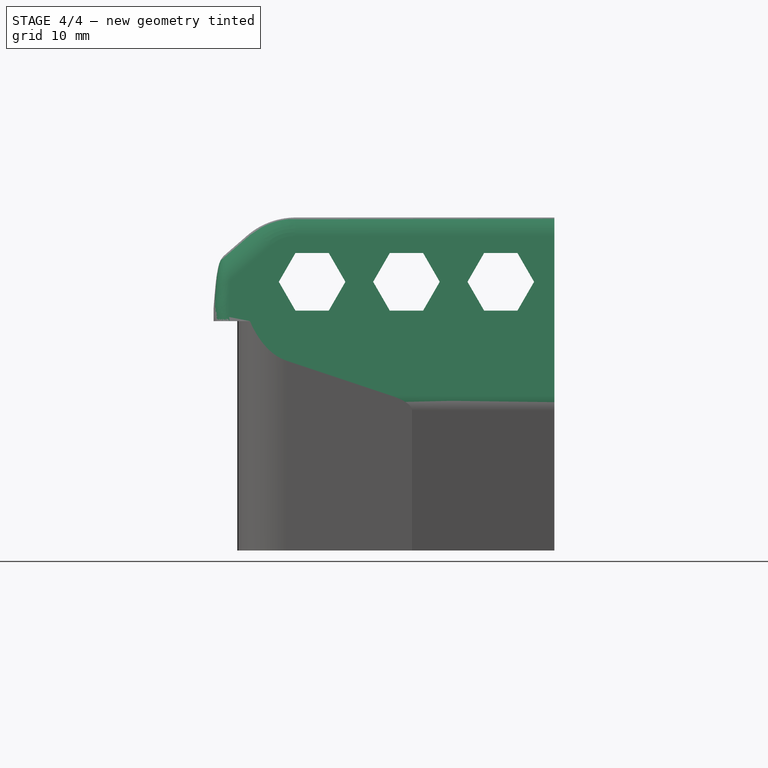
[diagram: stage 4 of 4 — right view after this stage's code; geometry added in this stage tinted green]
FEATURE [Sketcher::SketchObject] Sketch009
  ExternalGeometry = -> [Pocket004]
  FullyConstrained = true
  MapMode = 5
  Placement = pos=(0,0,0) rot=(0,0.707107,0.707107;3.14159rad)
  Support = -> [Pocket004]
  sketch-geometry (7):
    g0: LineSegment StartX=-75 StartY=19.9904 StartZ=0 EndX=0 EndY=19.9904 EndZ=0
    g1: LineSegment StartX=-75 StartY=19.9904 StartZ=0 EndX=-60.5607 EndY=45 EndZ=0
    g2: LineSegment StartX=-14.4393 StartY=45 StartZ=0 EndX=1.8e-15 EndY=19.9904 EndZ=0
    g3: LineSegment StartX=-75 StartY=19.9904 StartZ=0 EndX=-75 EndY=45 EndZ=0
    g4: LineSegment StartX=-75 StartY=45 StartZ=0 EndX=-60.5607 EndY=45 EndZ=0
    g5: LineSegment StartX=-14.4393 StartY=45 StartZ=0 EndX=0 EndY=45 EndZ=0
    g6: LineSegment StartX=0 StartY=45 StartZ=0 EndX=1.8e-15 EndY=19.9904 EndZ=0
  constraints (19):
    c: PointOnObject(g0,g-4)
    c: PointOnObject(g0,g-6)
    c: Horizontal(g0)
    c: PointOnObject(g-3,g0)
    c: Coincident(g0,g1)
    c: PointOnObject(g1,g-5)
    c: PointOnObject(g2,g-5)
    c: Coincident(g2,g0)
    c: Angle(g1) = 1.0472
    c: Angle(g2) = -1.0472
    c: Coincident(g0,g3)
    c: Coincident(g3,g-5)
    c: Coincident(g3,g4)
    c: Coincident(g4,g1)
    c: Coincident(g5,g-5)
    c: Horizontal(g5)
    c: Coincident(g5,g6)
    c: Coincident(g6,g0)
    c: PointOnObject(g5,g2)
FEATURE [PartDesign::Pocket] Pocket005
  BaseFeature = -> Pocket004
  Length = 5
  Length2 = 100
  Profile = -> Sketch009
  Type = 1
FEATURE [PartDesign::Fillet] Fillet001
  Base = -> Pocket005 [Edge17,Edge37]
  BaseFeature = -> Pocket005
  Radius = 5
  SupportTransform = false
FEATURE [PartDesign::Fillet] Fillet002
  Base = -> Fillet001 [Edge57,Edge30,Edge29]
  BaseFeature = -> Fillet001
  Radius = 4
  SupportTransform = false
FEATURE [PartDesign::Fillet] Fillet003
  Base = -> Fillet002 [Edge165,Edge164,Edge64]
  BaseFeature = -> Fillet002
  Radius = 2
  SupportTransform = false
FEATURE [PartDesign::Body] Body
  Group = -> [Sketch,Pad,Sketch001,Pocket,Sketch002,Pocket001,Sketch003,Pad001,Sketch004,Hole,Sketch005,Pocket002,Sketch006,Pad002,Sketch007,Pocket003,Fillet,Sketch008,Pocket004,Sketch009,Pocket005,Fillet001,Fillet002,Fillet003]
  Origin = -> Origin
  Tip = -> Fillet003
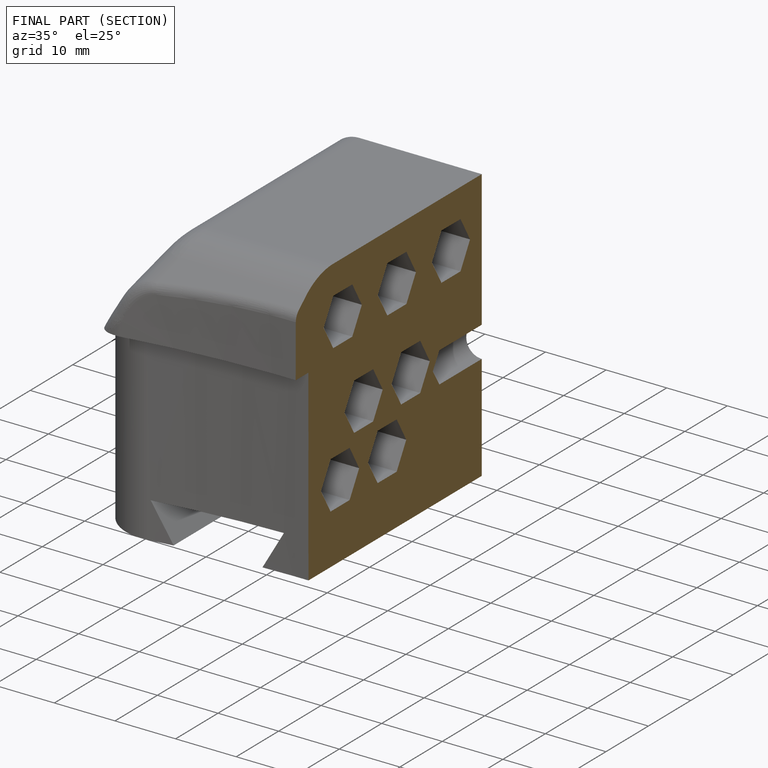
[diagram: finished part — half-section view (interior)]
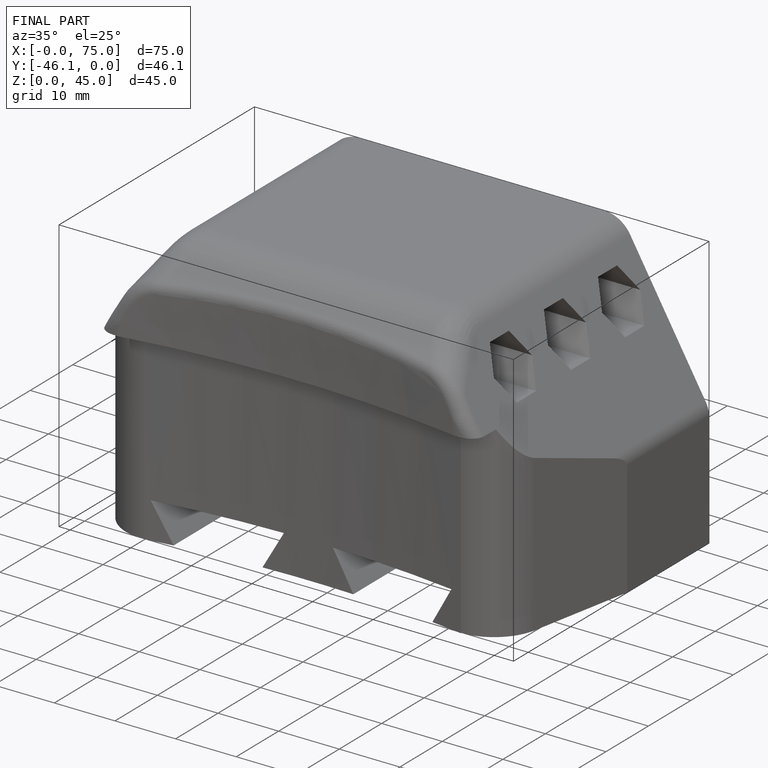
[diagram: finished part — iso view with bounding-box wireframe]
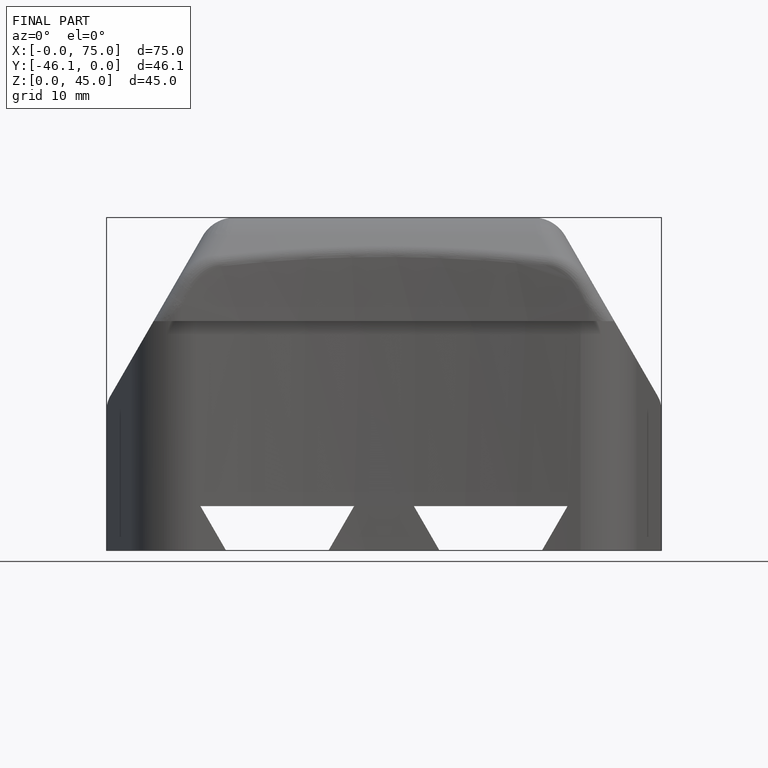
[diagram: finished part — front view with bounding-box wireframe]
